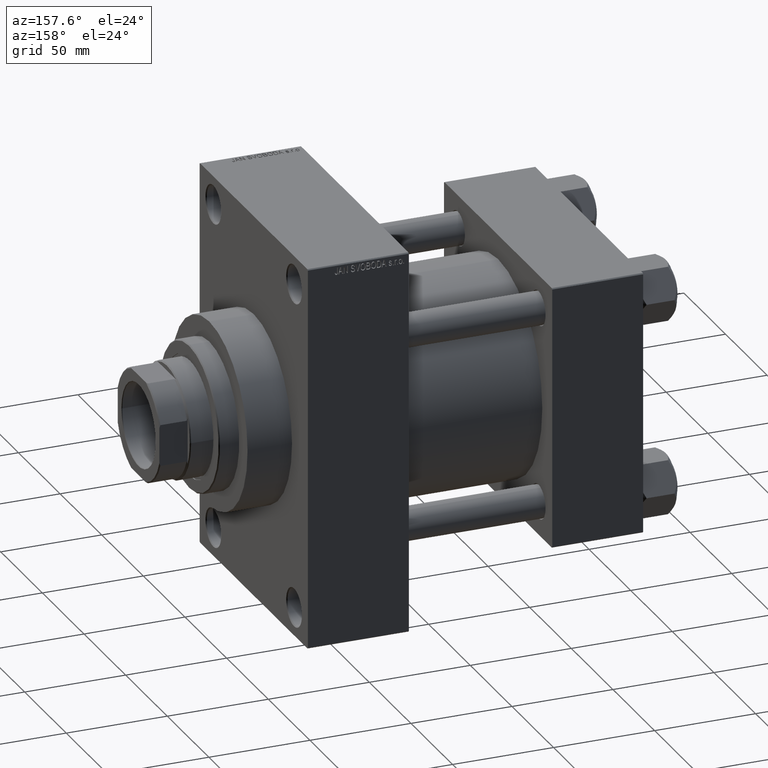
[diagram: clean part render]
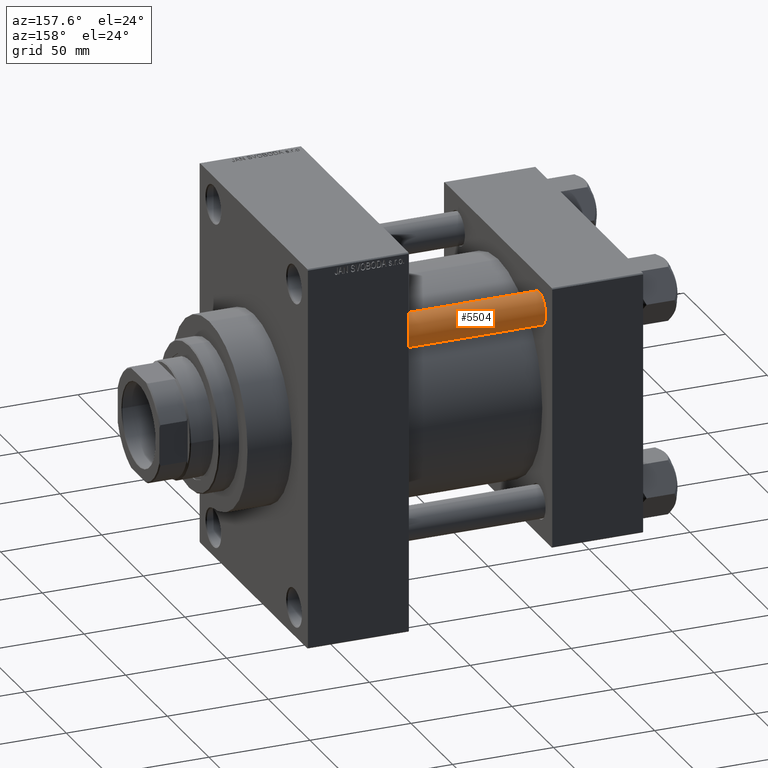
[diagram: same view with one face highlighted and labeled with its STEP entity id]
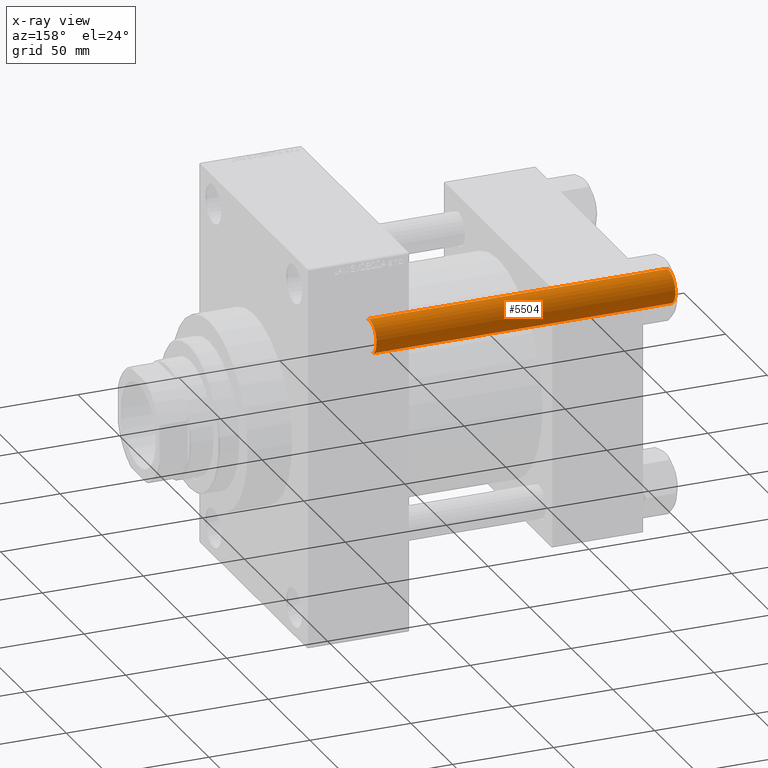
[diagram: x-ray of the same camera — body ghosted, the highlighted face saturated]
A machine part, auxiliary view. The second image highlights one B-rep face of the part: STEP entity #5504.
The next image is the same camera in x-ray: the body ghosted, the highlighted face saturated — about 0% of this face is hidden behind the body in this view.
In plain terms, the highlighted cylindrical surface (edge-blend (fillet) strip) has radius 8 mm, axis along (-1, -0, 0).
Its self-contained STEP definition (entity closure, byte-faithful):
#759 = CIRCLE ( 'NONE', #47005, 8.000000000000000000 ) ;
#1536 = LINE ( 'NONE', #46435, #21106 ) ;
#2504 = ORIENTED_EDGE ( 'NONE', *, *, #25388, .T. ) ;
#3842 = CARTESIAN_POINT ( 'NONE',  ( -8.000000000000000000, 0.000000000000000000, 148.5000000000000000 ) ) ;
#4592 = VECTOR ( 'NONE', #43730, 1000.000000000000000 ) ;
#5504 = ADVANCED_FACE ( 'NONE', ( #11273 ), #37139, .T. ) ;
#6033 = EDGE_CURVE ( 'NONE', #39824, #25292, #32192, .T. ) ;
#6101 = DIRECTION ( 'NONE',  ( 1.000000000000000000, 0.000000000000000000, 0.000000000000000000 ) ) ;
#6417 = DIRECTION ( 'NONE',  ( 0.000000000000000000, 0.000000000000000000, -1.000000000000000000 ) ) ;
#7447 = ORIENTED_EDGE ( 'NONE', *, *, #6033, .T. ) ;
#8291 = AXIS2_PLACEMENT_3D ( 'NONE', #41863, #31694, #6101 ) ;
#9769 = CARTESIAN_POINT ( 'NONE',  ( 8.000000000000000000, 9.797174393178825657E-16, 148.5000000000000000 ) ) ;
#11273 = FACE_OUTER_BOUND ( 'NONE', #33073, .T. ) ;
#14162 = DIRECTION ( 'NONE',  ( -1.000000000000000000, 0.000000000000000000, 0.000000000000000000 ) ) ;
#14467 = LINE ( 'NONE', #40345, #4592 ) ;
#16692 = DIRECTION ( 'NONE',  ( -0.000000000000000000, -0.000000000000000000, -1.000000000000000000 ) ) ;
#17806 = VERTEX_POINT ( 'NONE', #9769 ) ;
#21106 = VECTOR ( 'NONE', #16692, 1000.000000000000000 ) ;
#23157 = ORIENTED_EDGE ( 'NONE', *, *, #28130, .T. ) ;
#25292 = VERTEX_POINT ( 'NONE', #31164 ) ;
#25388 = EDGE_CURVE ( 'NONE', #17806, #39824, #14467, .T. ) ;
#28130 = EDGE_CURVE ( 'NONE', #30813, #17806, #759, .T. ) ;
#28142 = CARTESIAN_POINT ( 'NONE',  ( 0.000000000000000000, 0.000000000000000000, 148.5000000000000000 ) ) ;
#29394 = DIRECTION ( 'NONE',  ( -0.000000000000000000, -0.000000000000000000, -1.000000000000000000 ) ) ;
#30813 = VERTEX_POINT ( 'NONE', #3842 ) ;
#31164 = CARTESIAN_POINT ( 'NONE',  ( -8.000000000000000000, 0.000000000000000000, 0.5000000000000281997 ) ) ;
#31694 = DIRECTION ( 'NONE',  ( -0.000000000000000000, -0.000000000000000000, 1.000000000000000000 ) ) ;
#32192 = CIRCLE ( 'NONE', #8291, 8.000000000000000000 ) ;
#33073 = EDGE_LOOP ( 'NONE', ( #23157, #2504, #7447, #46387 ) ) ;
#35500 = CARTESIAN_POINT ( 'NONE',  ( 8.000000000000000000, 9.797174393178825657E-16, 0.5000000000000281997 ) ) ;
#35887 = DIRECTION ( 'NONE',  ( 1.000000000000000000, 0.000000000000000000, 0.000000000000000000 ) ) ;
#37139 = CYLINDRICAL_SURFACE ( 'NONE', #45269, 8.000000000000000000 ) ;
#39433 = EDGE_CURVE ( 'NONE', #30813, #25292, #1536, .T. ) ;
#39824 = VERTEX_POINT ( 'NONE', #35500 ) ;
#40345 = CARTESIAN_POINT ( 'NONE',  ( 8.000000000000000000, 9.797174393178825657E-16, 149.0000000000000000 ) ) ;
#41863 = CARTESIAN_POINT ( 'NONE',  ( 0.000000000000000000, 0.000000000000000000, 0.5000000000000281997 ) ) ;
#43730 = DIRECTION ( 'NONE',  ( -0.000000000000000000, -0.000000000000000000, -1.000000000000000000 ) ) ;
#43895 = CARTESIAN_POINT ( 'NONE',  ( 0.000000000000000000, 0.000000000000000000, 149.0000000000000000 ) ) ;
#45269 = AXIS2_PLACEMENT_3D ( 'NONE', #43895, #29394, #14162 ) ;
#46387 = ORIENTED_EDGE ( 'NONE', *, *, #39433, .F. ) ;
#46435 = CARTESIAN_POINT ( 'NONE',  ( -8.000000000000000000, 0.000000000000000000, 149.0000000000000000 ) ) ;
#47005 = AXIS2_PLACEMENT_3D ( 'NONE', #28142, #6417, #35887 ) ;